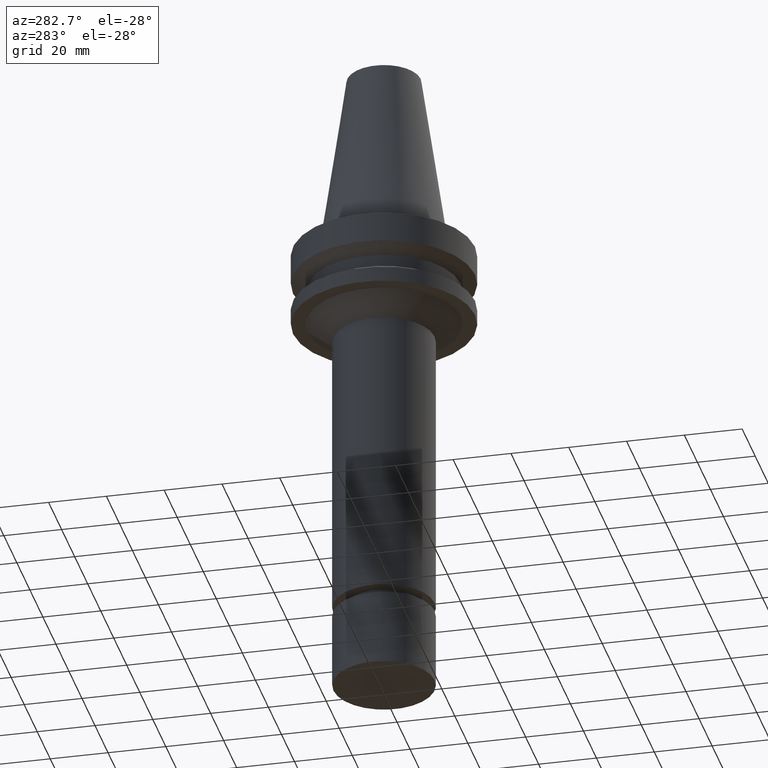
[diagram: clean part render]
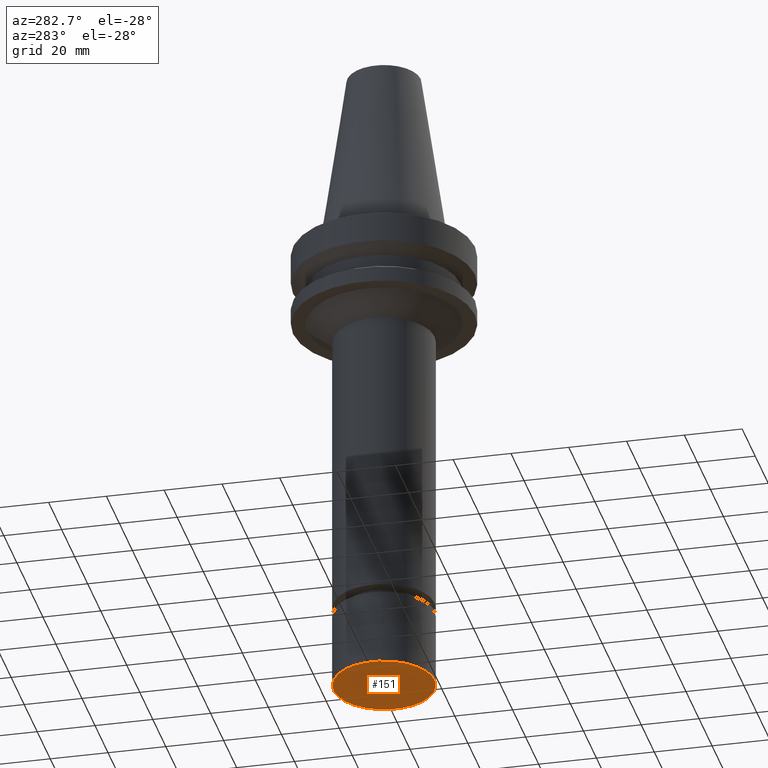
[diagram: same view with one face highlighted and labeled with its STEP entity id]
A machine part, auxiliary view. The second image highlights one B-rep face of the part: STEP entity #151.
In plain terms, the highlighted planar face has unit normal (0, 0, -1).
Its self-contained STEP definition (entity closure, byte-faithful):
#137=EDGE_CURVE('Unnamed[1]',#296,#296,#297,.T.);
#151=ADVANCED_FACE('Unnamed[1]',(#317),#318,.T.);
#296=VERTEX_POINT('',#495);
#297=CIRCLE('',#496,17.4999999999999);
#317=FACE_OUTER_BOUND('',#522,.T.);
#318=PLANE('',#523);
#495=CARTESIAN_POINT('',(1.01033360929657E-014,17.5,-165.0));
#496=AXIS2_PLACEMENT_3D('',#686,#687,#688);
#522=EDGE_LOOP('',(#708));
#523=AXIS2_PLACEMENT_3D('',#709,#710,#711);
#686=CARTESIAN_POINT('',(1.01033360929657E-014,6.18337644923003E-014,-165.0));
#687=DIRECTION('',(6.12323399573677E-017,-6.62687154769284E-017,-1.0));
#688=DIRECTION('',(-7.69364216147668E-034,1.0,-6.62687154769284E-017));
#708=ORIENTED_EDGE('',*,*,#137,.T.);
#709=CARTESIAN_POINT('',(1.01033360929657E-014,8.75000000000004,-165.0));
#710=DIRECTION('',(6.12323399573677E-017,1.22464679914735E-016,-1.0));
#711=DIRECTION('',(-1.23259516440783E-032,1.0,1.22464679914735E-016));